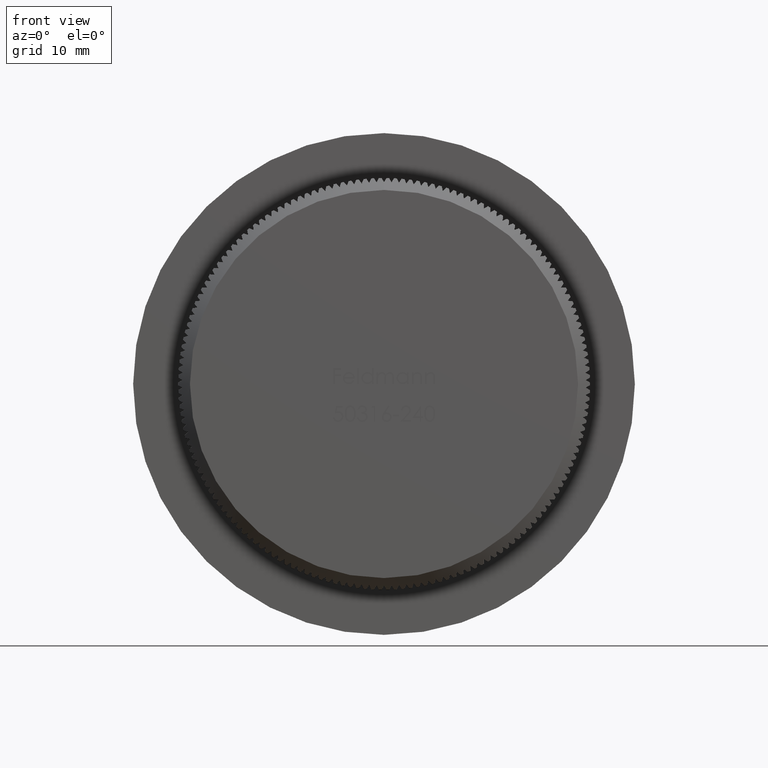
[diagram: clean part render]
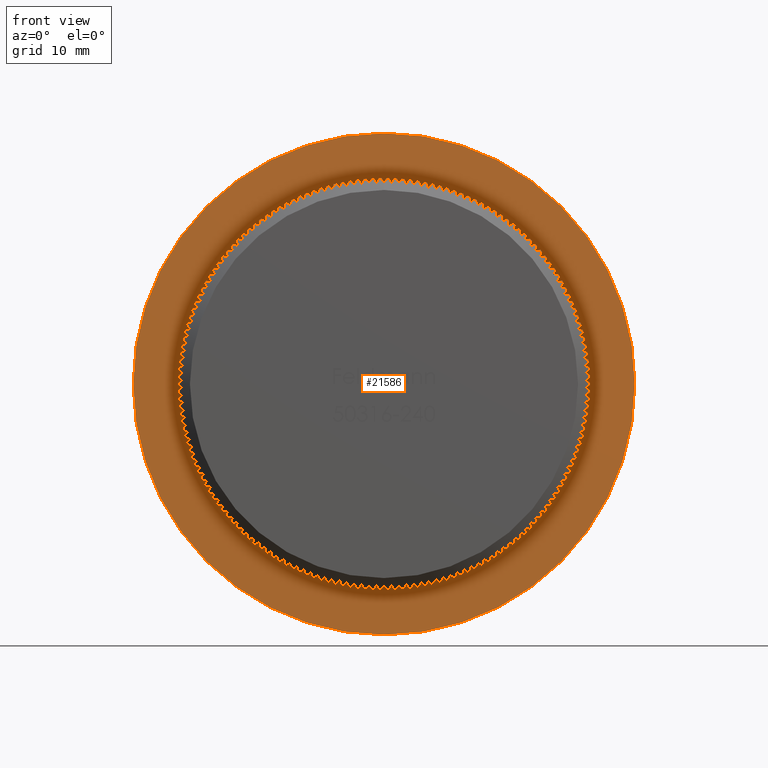
[diagram: same view with one face highlighted and labeled with its STEP entity id]
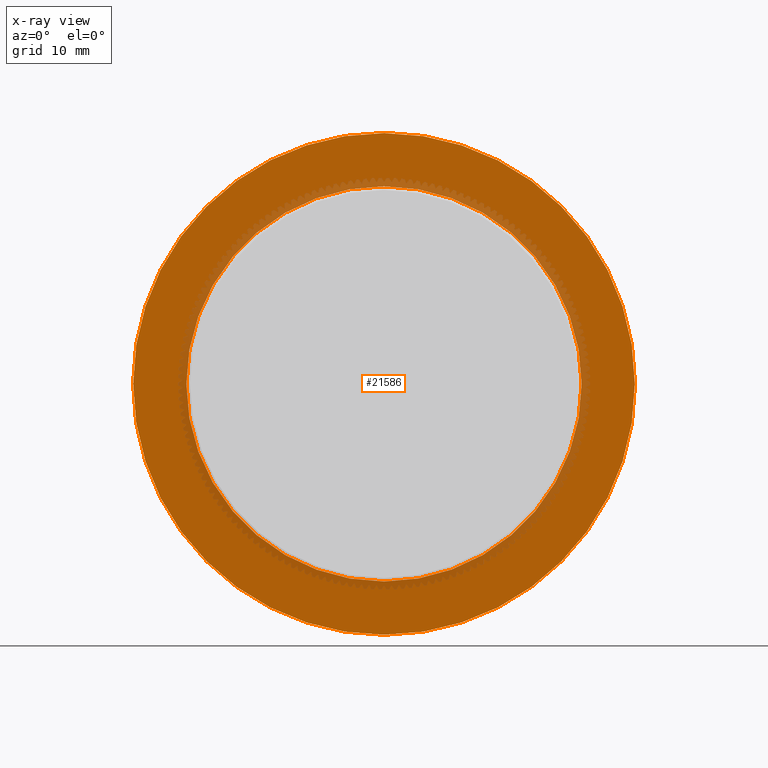
[diagram: x-ray of the same camera — body ghosted, the highlighted face saturated]
A machine part, front view. The second image highlights one B-rep face of the part: STEP entity #21586.
The next image is the same camera in x-ray: the body ghosted, the highlighted face saturated — about 13% of this face is hidden behind the body in this view.
In plain terms, the highlighted planar face has unit normal (0, -1, -0).
Its self-contained STEP definition (entity closure, byte-faithful):
#694 = CARTESIAN_POINT ( 'NONE',  ( 0.0000000000000000000, 8.000000000000000000, 0.0000000000000000000 ) ) ;
#988 = CARTESIAN_POINT ( 'NONE',  ( 16.69999999999999900, 8.000000000000000000, 0.0000000000000000000 ) ) ;
#1039 = ORIENTED_EDGE ( 'NONE', *, *, #17564, .F. ) ;
#1106 = DIRECTION ( 'NONE',  ( -0.0000000000000000000, -1.000000000000000000, -0.0000000000000000000 ) ) ;
#3390 = PLANE ( 'NONE',  #9506 ) ;
#4444 = FACE_BOUND ( 'NONE', #29237, .T. ) ;
#4522 = CARTESIAN_POINT ( 'NONE',  ( 0.0000000000000000000, 8.000000000000000000, -16.69999999999999900 ) ) ;
#4768 = VERTEX_POINT ( 'NONE', #18491 ) ;
#5009 = EDGE_CURVE ( 'NONE', #4768, #20995, #21170, .T. ) ;
#5056 = EDGE_CURVE ( 'NONE', #13971, #25502, #14142, .T. ) ;
#9456 = AXIS2_PLACEMENT_3D ( 'NONE', #18556, #30148, #16045 ) ;
#9506 = AXIS2_PLACEMENT_3D ( 'NONE', #988, #17571, #12732 ) ;
#9922 = DIRECTION ( 'NONE',  ( 0.0000000000000000000, 0.0000000000000000000, -1.000000000000000000 ) ) ;
#10415 = DIRECTION ( 'NONE',  ( 0.0000000000000000000, 0.0000000000000000000, -1.000000000000000000 ) ) ;
#11045 = AXIS2_PLACEMENT_3D ( 'NONE', #26113, #18766, #14203 ) ;
#11380 = ORIENTED_EDGE ( 'NONE', *, *, #5009, .T. ) ;
#12732 = DIRECTION ( 'NONE',  ( 0.0000000000000000000, 0.0000000000000000000, -1.000000000000000000 ) ) ;
#13574 = ORIENTED_EDGE ( 'NONE', *, *, #30750, .T. ) ;
#13971 = VERTEX_POINT ( 'NONE', #4522 ) ;
#14142 = CIRCLE ( 'NONE', #11045, 16.69999999999999900 ) ;
#14203 = DIRECTION ( 'NONE',  ( 0.0000000000000000000, 0.0000000000000000000, -1.000000000000000000 ) ) ;
#14293 = ORIENTED_EDGE ( 'NONE', *, *, #5056, .F. ) ;
#16045 = DIRECTION ( 'NONE',  ( 0.0000000000000000000, 0.0000000000000000000, -1.000000000000000000 ) ) ;
#16392 = CIRCLE ( 'NONE', #16606, 21.19999999999999900 ) ;
#16606 = AXIS2_PLACEMENT_3D ( 'NONE', #694, #1106, #10415 ) ;
#17564 = EDGE_CURVE ( 'NONE', #25502, #13971, #19702, .T. ) ;
#17571 = DIRECTION ( 'NONE',  ( 0.0000000000000000000, -1.000000000000000000, -0.0000000000000000000 ) ) ;
#18491 = CARTESIAN_POINT ( 'NONE',  ( 2.596251214192388800E-015, 8.000000000000000000, 21.19999999999999900 ) ) ;
#18540 = FACE_OUTER_BOUND ( 'NONE', #19380, .T. ) ;
#18556 = CARTESIAN_POINT ( 'NONE',  ( 0.0000000000000000000, 8.000000000000000000, 0.0000000000000000000 ) ) ;
#18766 = DIRECTION ( 'NONE',  ( -0.0000000000000000000, -1.000000000000000000, -0.0000000000000000000 ) ) ;
#19206 = DIRECTION ( 'NONE',  ( -0.0000000000000000000, -1.000000000000000000, -0.0000000000000000000 ) ) ;
#19380 = EDGE_LOOP ( 'NONE', ( #13574, #11380 ) ) ;
#19702 = CIRCLE ( 'NONE', #24478, 16.69999999999999900 ) ;
#20995 = VERTEX_POINT ( 'NONE', #23858 ) ;
#21170 = CIRCLE ( 'NONE', #9456, 21.19999999999999900 ) ;
#21568 = CARTESIAN_POINT ( 'NONE',  ( 0.0000000000000000000, 8.000000000000000000, 0.0000000000000000000 ) ) ;
#21586 = ADVANCED_FACE ( 'NONE', ( #18540, #4444 ), #3390, .T. ) ;
#23858 = CARTESIAN_POINT ( 'NONE',  ( 0.0000000000000000000, 8.000000000000000000, -21.19999999999999900 ) ) ;
#24478 = AXIS2_PLACEMENT_3D ( 'NONE', #21568, #19206, #9922 ) ;
#25502 = VERTEX_POINT ( 'NONE', #27833 ) ;
#26113 = CARTESIAN_POINT ( 'NONE',  ( 0.0000000000000000000, 8.000000000000000000, 0.0000000000000000000 ) ) ;
#27833 = CARTESIAN_POINT ( 'NONE',  ( 2.088022792546237000E-015, 8.000000000000000000, 16.69999999999999900 ) ) ;
#29237 = EDGE_LOOP ( 'NONE', ( #14293, #1039 ) ) ;
#30148 = DIRECTION ( 'NONE',  ( -0.0000000000000000000, -1.000000000000000000, -0.0000000000000000000 ) ) ;
#30750 = EDGE_CURVE ( 'NONE', #20995, #4768, #16392, .T. ) ;